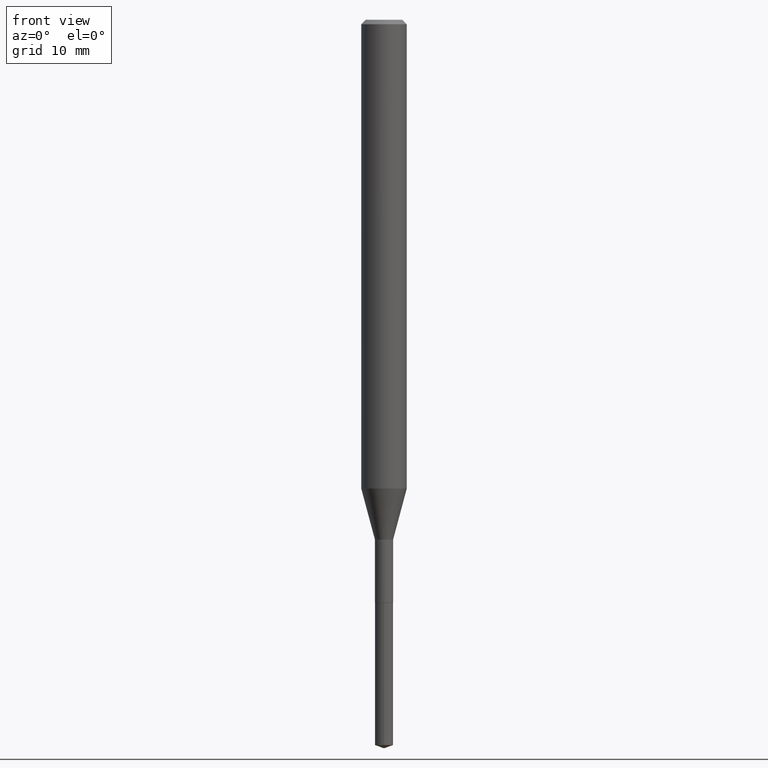
[diagram: clean part render]
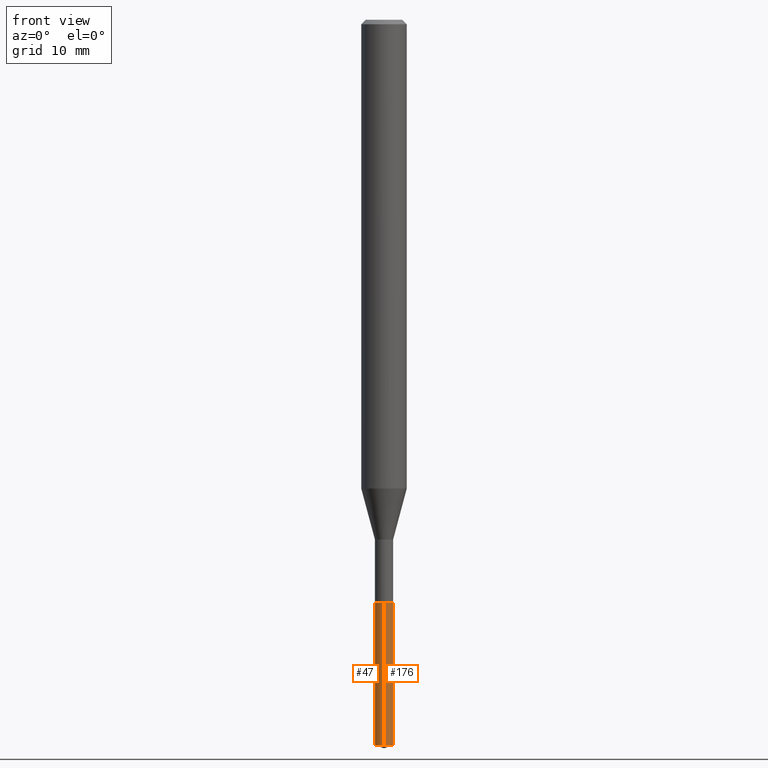
[diagram: same view with one multi-face feature highlighted, each face labeled with its STEP entity id]
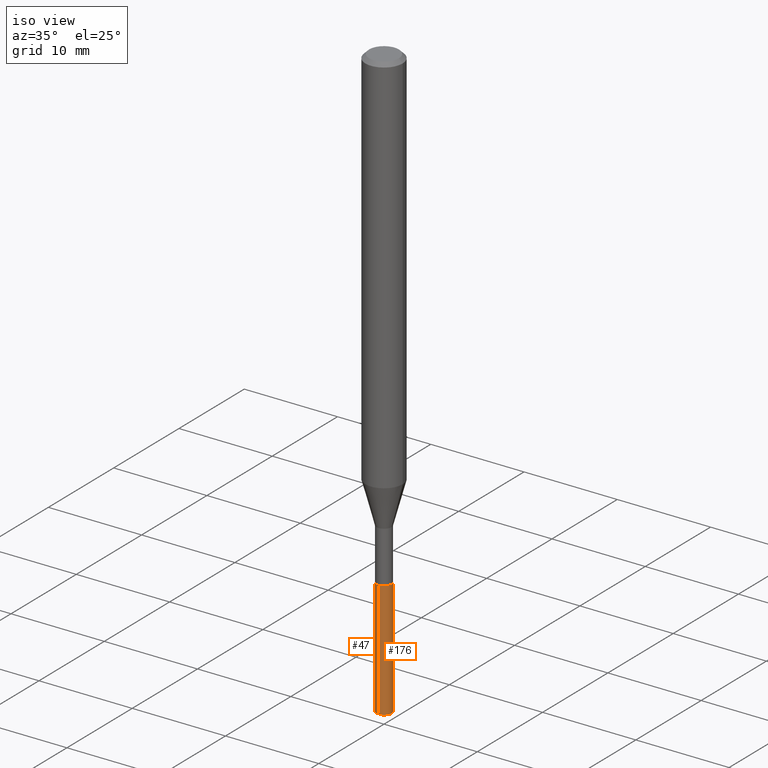
[diagram: same view with one multi-face feature highlighted, each face labeled with its STEP entity id]
A machine part, front view. The highlighted faces form ONE feature: a constant-radius fillet chain: 2 tangent blend faces with common blend radius 0.8001 mm. The faces share edges in the B-rep.
A second angle (iso view) of the same feature is appended — it is thin or edge-on in the first view.
Their STEP definitions:
[1] entity #176 (Cylinder):
#9 = VERTEX_POINT ( 'NONE', #97 ) ;
#14 = VERTEX_POINT ( 'NONE', #239 ) ;
#26 = CIRCLE ( 'NONE', #413, 0.03150000000000000022 ) ;
#27 = DIRECTION ( 'NONE',  ( -2.445598792571607653E-29, 3.491295190939353705E-15, 1.000000000000000000 ) ) ;
#35 = CARTESIAN_POINT ( 'NONE',  ( 4.929576019507997424E-29, -7.038128082840012256E-15, -2.015800000000000036 ) ) ;
#53 = CARTESIAN_POINT ( 'NONE',  ( 2.238209617644808146E-16, 0.03149999999999296418, -2.015800000000000036 ) ) ;
#62 = CARTESIAN_POINT ( 'NONE',  ( 4.929576019507997424E-29, -7.038128082840012256E-15, -2.015800000000000036 ) ) ;
#74 = ORIENTED_EDGE ( 'NONE', *, *, #259, .T. ) ;
#79 = EDGE_LOOP ( 'NONE', ( #74, #457, #127, #476 ) ) ;
#97 = CARTESIAN_POINT ( 'NONE',  ( -2.199633243470561029E-16, -0.03150000000000875711, -2.508234937620615224 ) ) ;
#115 = DIRECTION ( 'NONE',  ( -6.982962677686265922E-15, -1.000000000000000000, 0.000000000000000000 ) ) ;
#118 = DIRECTION ( 'NONE',  ( -2.445598792571607653E-29, 3.491295190939353705E-15, 1.000000000000000000 ) ) ;
#127 = ORIENTED_EDGE ( 'NONE', *, *, #483, .F. ) ;
#154 = DIRECTION ( 'NONE',  ( -2.445598792571607653E-29, 3.491295190939353705E-15, 1.000000000000000000 ) ) ;
#161 = AXIS2_PLACEMENT_3D ( 'NONE', #62, #251, #173 ) ;
#162 = CARTESIAN_POINT ( 'NONE',  ( 6.133874308373049254E-29, -8.757363812405388439E-15, -2.508234937620615224 ) ) ;
#164 = DIRECTION ( 'NONE',  ( -6.982962677686265922E-15, -1.000000000000000000, 0.000000000000000000 ) ) ;
#167 = DIRECTION ( 'NONE',  ( -2.445598792571607653E-29, 3.491295190939353705E-15, 1.000000000000000000 ) ) ;
#173 = DIRECTION ( 'NONE',  ( -6.982962677686265922E-15, -1.000000000000000000, 0.000000000000000000 ) ) ;
#176 = ADVANCED_FACE ( 'NONE', ( #260 ), #415, .T. ) ;
#185 = VECTOR ( 'NONE', #118, 39.37007874015748143 ) ;
#188 = CARTESIAN_POINT ( 'NONE',  ( -2.199633243470681084E-16, -0.03150000000000703626, -2.015800000000000036 ) ) ;
#219 = VECTOR ( 'NONE', #167, 39.37007874015748143 ) ;
#221 = AXIS2_PLACEMENT_3D ( 'NONE', #35, #27, #115 ) ;
#239 = CARTESIAN_POINT ( 'NONE',  ( 2.238209617644928448E-16, 0.03149999999999124334, -2.508234937620615224 ) ) ;
#246 = VERTEX_POINT ( 'NONE', #188 ) ;
#251 = DIRECTION ( 'NONE',  ( -2.445598792571607653E-29, 3.491295190939353705E-15, 1.000000000000000000 ) ) ;
#259 = EDGE_CURVE ( 'NONE', #9, #14, #26, .T. ) ;
#260 = FACE_OUTER_BOUND ( 'NONE', #79, .T. ) ;
#267 = EDGE_CURVE ( 'NONE', #14, #417, #312, .T. ) ;
#312 = LINE ( 'NONE', #53, #185 ) ;
#316 = LINE ( 'NONE', #348, #219 ) ;
#323 = CARTESIAN_POINT ( 'NONE',  ( 2.238209617644929434E-16, 0.03149999999999296418, -2.015800000000000036 ) ) ;
#327 = EDGE_CURVE ( 'NONE', #9, #246, #316, .T. ) ;
#348 = CARTESIAN_POINT ( 'NONE',  ( -2.199633243470681084E-16, -0.03150000000000703626, -2.015800000000000036 ) ) ;
#389 = CIRCLE ( 'NONE', #161, 0.03150000000000000022 ) ;
#413 = AXIS2_PLACEMENT_3D ( 'NONE', #162, #154, #164 ) ;
#415 = CYLINDRICAL_SURFACE ( 'NONE', #221, 0.03150000000000000022 ) ;
#417 = VERTEX_POINT ( 'NONE', #323 ) ;
#457 = ORIENTED_EDGE ( 'NONE', *, *, #267, .T. ) ;
#476 = ORIENTED_EDGE ( 'NONE', *, *, #327, .F. ) ;
#483 = EDGE_CURVE ( 'NONE', #246, #417, #389, .T. ) ;
[2] entity #47 (Cylinder):
#9 = VERTEX_POINT ( 'NONE', #97 ) ;
#14 = VERTEX_POINT ( 'NONE', #239 ) ;
#47 = ADVANCED_FACE ( 'NONE', ( #318 ), #207, .T. ) ;
#53 = CARTESIAN_POINT ( 'NONE',  ( 2.238209617644808146E-16, 0.03149999999999296418, -2.015800000000000036 ) ) ;
#57 = AXIS2_PLACEMENT_3D ( 'NONE', #156, #201, #422 ) ;
#97 = CARTESIAN_POINT ( 'NONE',  ( -2.199633243470561029E-16, -0.03150000000000875711, -2.508234937620615224 ) ) ;
#100 = EDGE_LOOP ( 'NONE', ( #155, #385, #434, #278 ) ) ;
#118 = DIRECTION ( 'NONE',  ( -2.445598792571607653E-29, 3.491295190939353705E-15, 1.000000000000000000 ) ) ;
#124 = DIRECTION ( 'NONE',  ( -6.982962677686265922E-15, -1.000000000000000000, 0.000000000000000000 ) ) ;
#126 = CARTESIAN_POINT ( 'NONE',  ( 6.133874308373049254E-29, -8.757363812405388439E-15, -2.508234937620615224 ) ) ;
#142 = DIRECTION ( 'NONE',  ( -6.982962677686265922E-15, -1.000000000000000000, 0.000000000000000000 ) ) ;
#155 = ORIENTED_EDGE ( 'NONE', *, *, #267, .F. ) ;
#156 = CARTESIAN_POINT ( 'NONE',  ( 4.929576019507997424E-29, -7.038128082840012256E-15, -2.015800000000000036 ) ) ;
#167 = DIRECTION ( 'NONE',  ( -2.445598792571607653E-29, 3.491295190939353705E-15, 1.000000000000000000 ) ) ;
#179 = AXIS2_PLACEMENT_3D ( 'NONE', #472, #322, #142 ) ;
#185 = VECTOR ( 'NONE', #118, 39.37007874015748143 ) ;
#188 = CARTESIAN_POINT ( 'NONE',  ( -2.199633243470681084E-16, -0.03150000000000703626, -2.015800000000000036 ) ) ;
#201 = DIRECTION ( 'NONE',  ( -2.445598792571607653E-29, 3.491295190939353705E-15, 1.000000000000000000 ) ) ;
#207 = CYLINDRICAL_SURFACE ( 'NONE', #179, 0.03150000000000000022 ) ;
#219 = VECTOR ( 'NONE', #167, 39.37007874015748143 ) ;
#233 = DIRECTION ( 'NONE',  ( -2.445598792571607653E-29, 3.491295190939353705E-15, 1.000000000000000000 ) ) ;
#239 = CARTESIAN_POINT ( 'NONE',  ( 2.238209617644928448E-16, 0.03149999999999124334, -2.508234937620615224 ) ) ;
#246 = VERTEX_POINT ( 'NONE', #188 ) ;
#267 = EDGE_CURVE ( 'NONE', #14, #417, #312, .T. ) ;
#273 = EDGE_CURVE ( 'NONE', #417, #246, #350, .T. ) ;
#278 = ORIENTED_EDGE ( 'NONE', *, *, #273, .F. ) ;
#299 = AXIS2_PLACEMENT_3D ( 'NONE', #126, #233, #124 ) ;
#312 = LINE ( 'NONE', #53, #185 ) ;
#316 = LINE ( 'NONE', #348, #219 ) ;
#318 = FACE_OUTER_BOUND ( 'NONE', #100, .T. ) ;
#322 = DIRECTION ( 'NONE',  ( -2.445598792571607653E-29, 3.491295190939353705E-15, 1.000000000000000000 ) ) ;
#323 = CARTESIAN_POINT ( 'NONE',  ( 2.238209617644929434E-16, 0.03149999999999296418, -2.015800000000000036 ) ) ;
#327 = EDGE_CURVE ( 'NONE', #9, #246, #316, .T. ) ;
#348 = CARTESIAN_POINT ( 'NONE',  ( -2.199633243470681084E-16, -0.03150000000000703626, -2.015800000000000036 ) ) ;
#350 = CIRCLE ( 'NONE', #57, 0.03150000000000000022 ) ;
#351 = EDGE_CURVE ( 'NONE', #14, #9, #450, .T. ) ;
#385 = ORIENTED_EDGE ( 'NONE', *, *, #351, .T. ) ;
#417 = VERTEX_POINT ( 'NONE', #323 ) ;
#422 = DIRECTION ( 'NONE',  ( -6.982962677686265922E-15, -1.000000000000000000, 0.000000000000000000 ) ) ;
#434 = ORIENTED_EDGE ( 'NONE', *, *, #327, .T. ) ;
#450 = CIRCLE ( 'NONE', #299, 0.03150000000000000022 ) ;
#472 = CARTESIAN_POINT ( 'NONE',  ( 4.929576019507997424E-29, -7.038128082840012256E-15, -2.015800000000000036 ) ) ;